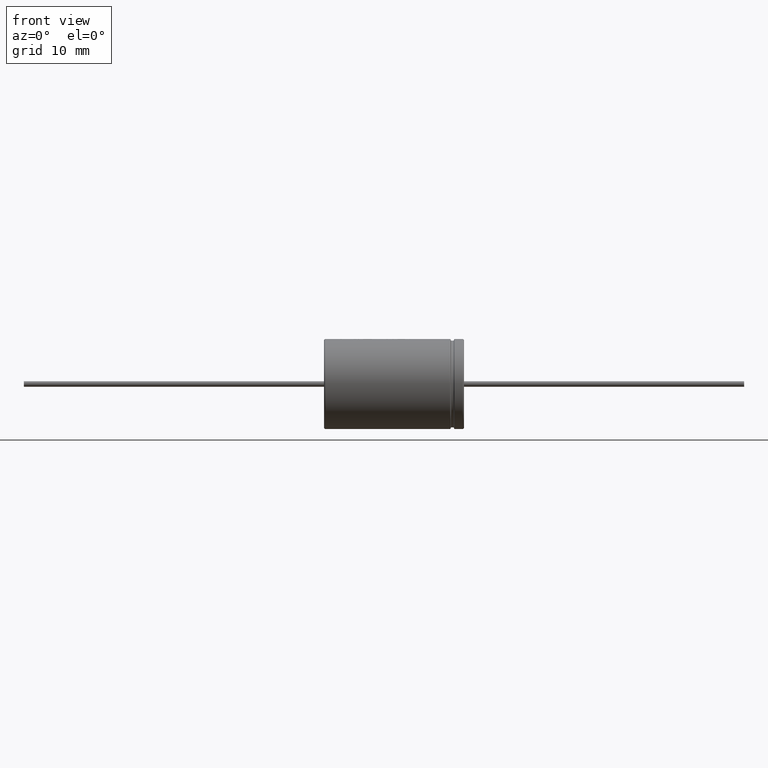
[diagram: clean part render]
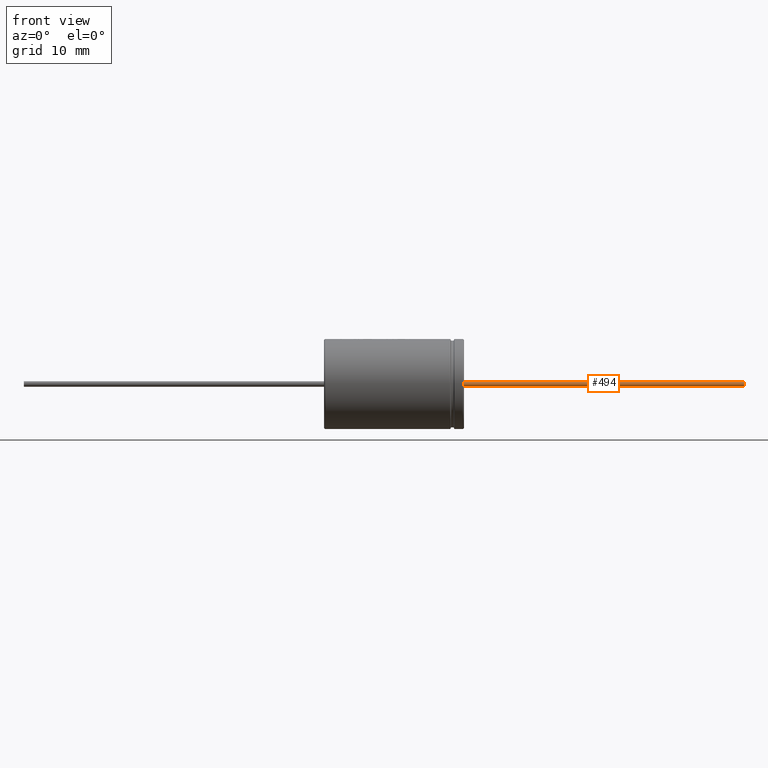
[diagram: same view with one face highlighted and labeled with its STEP entity id]
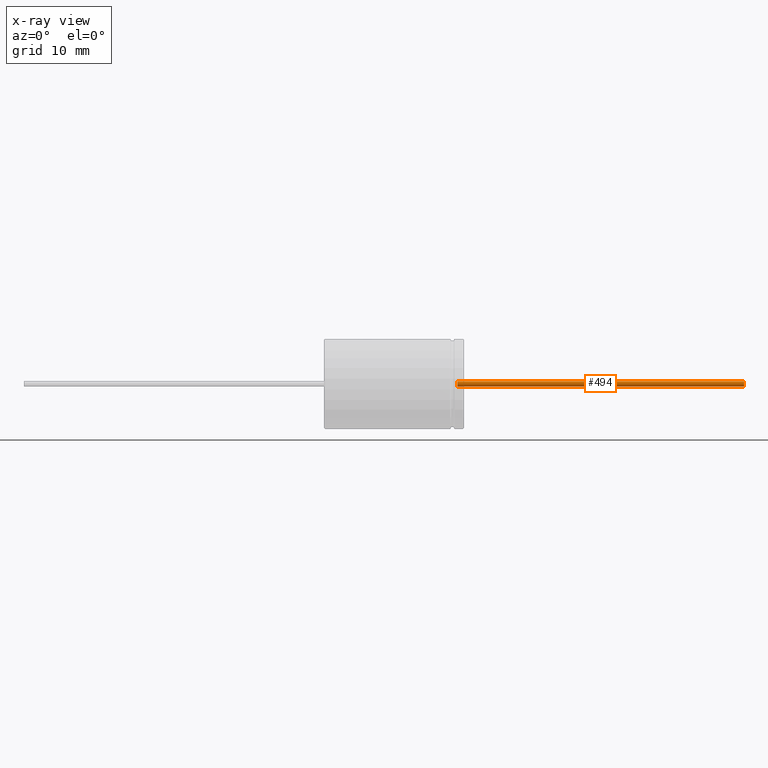
[diagram: x-ray of the same camera — body ghosted, the highlighted face saturated]
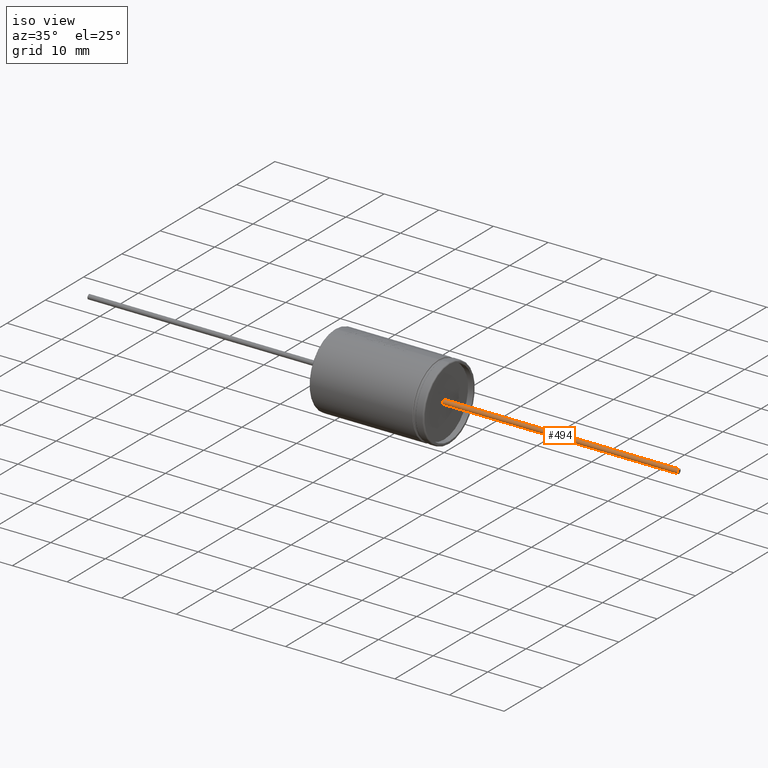
[diagram: same view with one face highlighted and labeled with its STEP entity id]
A machine part, front view. The second image highlights one B-rep face of the part: STEP entity #494.
The next image is the same camera in x-ray: the body ghosted, the highlighted face saturated — about 0% of this face is hidden behind the body in this view.
A second angle (iso view) of the same face is appended — the face is thin or edge-on in the first view.
In plain terms, the highlighted cylindrical surface (edge-blend (fillet) strip) has radius 0.415 mm, axis along (-1, -0, -0).
Its self-contained STEP definition (entity closure, byte-faithful):
#110 = VERTEX_POINT ( 'NONE', #973 ) ;
#164 = ORIENTED_EDGE ( 'NONE', *, *, #3875, .T. ) ;
#224 = DIRECTION ( 'NONE',  ( -1.000000000000000000, -0.0000000000000000000, -0.0000000000000000000 ) ) ;
#447 = EDGE_CURVE ( 'NONE', #2566, #1638, #1331, .T. ) ;
#494 = ADVANCED_FACE ( 'NONE', ( #4354 ), #3552, .T. ) ;
#547 = AXIS2_PLACEMENT_3D ( 'NONE', #2665, #3759, #1571 ) ;
#650 = VECTOR ( 'NONE', #1261, 1000.000000000000000 ) ;
#675 = DIRECTION ( 'NONE',  ( 1.000000000000000000, 0.0000000000000000000, 0.0000000000000000000 ) ) ;
#799 = ORIENTED_EDGE ( 'NONE', *, *, #447, .F. ) ;
#973 = CARTESIAN_POINT ( 'NONE',  ( 20.00000000000000000, 5.082284216461516300E-017, -0.4150000000000000400 ) ) ;
#1144 = ORIENTED_EDGE ( 'NONE', *, *, #2403, .F. ) ;
#1192 = CARTESIAN_POINT ( 'NONE',  ( 63.00000000000000000, 0.0000000000000000000, 0.0000000000000000000 ) ) ;
#1261 = DIRECTION ( 'NONE',  ( -1.000000000000000000, -0.0000000000000000000, -0.0000000000000000000 ) ) ;
#1316 = CIRCLE ( 'NONE', #3963, 0.4150000000000000400 ) ;
#1331 = CIRCLE ( 'NONE', #547, 0.4150000000000000400 ) ;
#1511 = CARTESIAN_POINT ( 'NONE',  ( 63.00000000000000000, 0.0000000000000000000, 0.4150000000000000400 ) ) ;
#1571 = DIRECTION ( 'NONE',  ( 0.0000000000000000000, 0.0000000000000000000, -1.000000000000000000 ) ) ;
#1638 = VERTEX_POINT ( 'NONE', #3600 ) ;
#1666 = LINE ( 'NONE', #2388, #4687 ) ;
#1769 = DIRECTION ( 'NONE',  ( 0.0000000000000000000, 0.0000000000000000000, -1.000000000000000000 ) ) ;
#1789 = VERTEX_POINT ( 'NONE', #3685 ) ;
#2208 = AXIS2_PLACEMENT_3D ( 'NONE', #1192, #2327, #3002 ) ;
#2327 = DIRECTION ( 'NONE',  ( -1.000000000000000000, -0.0000000000000000000, -0.0000000000000000000 ) ) ;
#2388 = CARTESIAN_POINT ( 'NONE',  ( 63.00000000000000000, 5.082284216461516300E-017, -0.4150000000000000400 ) ) ;
#2403 = EDGE_CURVE ( 'NONE', #1638, #110, #1666, .T. ) ;
#2566 = VERTEX_POINT ( 'NONE', #1511 ) ;
#2665 = CARTESIAN_POINT ( 'NONE',  ( 63.00000000000000000, 0.0000000000000000000, 0.0000000000000000000 ) ) ;
#3002 = DIRECTION ( 'NONE',  ( 0.0000000000000000000, 0.0000000000000000000, 1.000000000000000000 ) ) ;
#3029 = ORIENTED_EDGE ( 'NONE', *, *, #4493, .T. ) ;
#3545 = EDGE_LOOP ( 'NONE', ( #1144, #799, #164, #3029 ) ) ;
#3552 = CYLINDRICAL_SURFACE ( 'NONE', #2208, 0.4150000000000000400 ) ;
#3600 = CARTESIAN_POINT ( 'NONE',  ( 63.00000000000000000, 5.082284216461516300E-017, -0.4150000000000000400 ) ) ;
#3685 = CARTESIAN_POINT ( 'NONE',  ( 20.00000000000000000, 0.0000000000000000000, 0.4150000000000000400 ) ) ;
#3759 = DIRECTION ( 'NONE',  ( 1.000000000000000000, 0.0000000000000000000, 0.0000000000000000000 ) ) ;
#3875 = EDGE_CURVE ( 'NONE', #2566, #1789, #4046, .T. ) ;
#3963 = AXIS2_PLACEMENT_3D ( 'NONE', #4363, #675, #1769 ) ;
#4046 = LINE ( 'NONE', #4224, #650 ) ;
#4224 = CARTESIAN_POINT ( 'NONE',  ( 63.00000000000000000, 0.0000000000000000000, 0.4150000000000000400 ) ) ;
#4354 = FACE_OUTER_BOUND ( 'NONE', #3545, .T. ) ;
#4363 = CARTESIAN_POINT ( 'NONE',  ( 20.00000000000000000, 0.0000000000000000000, 0.0000000000000000000 ) ) ;
#4493 = EDGE_CURVE ( 'NONE', #1789, #110, #1316, .T. ) ;
#4687 = VECTOR ( 'NONE', #224, 1000.000000000000000 ) ;